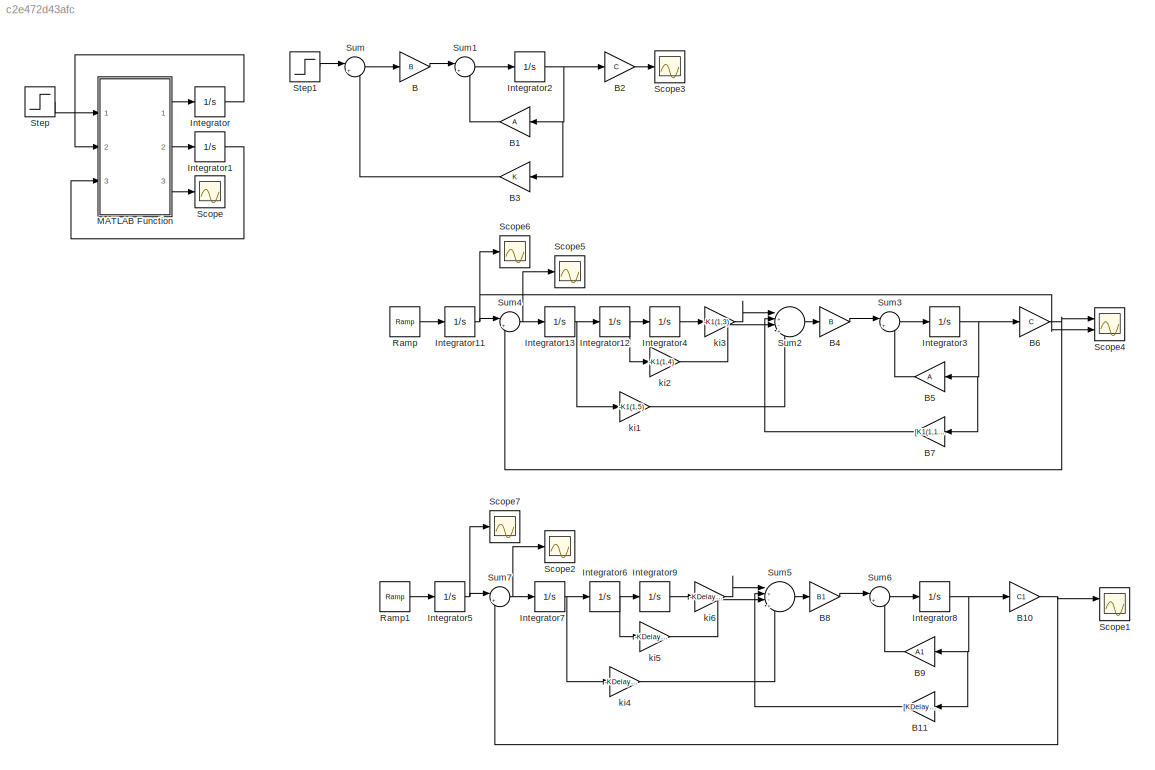
MODEL slx_c2e472d43afc
KIND model
CONFIG AbsTol = auto
CONFIG EnableMultiTasking = off
CONFIG FixedStep = auto
CONFIG MaxStep = auto
CONFIG MinStep = auto
CONFIG RelTol = 1e-3
CONFIG SampleTimeConstraint = Unconstrained
CONFIG SolverName = VariableStepAuto
CONFIG StartTime = 0.0
CONFIG StopTime = 5
BLOCK [Gain] B
  Gain = B
  Multiplication = Matrix(K*u)
BLOCK [Gain] B1
  Gain = A
  Multiplication = Matrix(K*u)
  NameLocation = top
BLOCK [Gain] B10
  Gain = C1
  Multiplication = Matrix(K*u)
BLOCK [Gain] B11
  Gain = [KDelay(1,1),KDelay(1,2),KDelay(1,3),KDelay(1,4)]
  Multiplication = Matrix(K*u)
  NameLocation = top
BLOCK [Gain] B2
  Gain = C
  Multiplication = Matrix(K*u)
BLOCK [Gain] B3
  Gain = K
  Multiplication = Matrix(K*u)
  NameLocation = top
BLOCK [Gain] B4
  Gain = B
  Multiplication = Matrix(K*u)
BLOCK [Gain] B5
  Gain = A
  Multiplication = Matrix(K*u)
  NameLocation = top
BLOCK [Gain] B6
  Gain = C
  Multiplication = Matrix(K*u)
BLOCK [Gain] B7
  Gain = [K1(1,1),K1(1,2)]
  Multiplication = Matrix(K*u)
  NameLocation = top
BLOCK [Gain] B8
  Gain = B1
  Multiplication = Matrix(K*u)
BLOCK [Gain] B9
  Gain = A1
  Multiplication = Matrix(K*u)
  NameLocation = top
BLOCK [Integrator] Integrator
  Ports = [1, 1]
BLOCK [Integrator] Integrator1
  Ports = [1, 1]
BLOCK [Integrator] Integrator11
  Ports = [1, 1]
BLOCK [Integrator] Integrator12
  Ports = [1, 1]
BLOCK [Integrator] Integrator13
  Ports = [1, 1]
BLOCK [Integrator] Integrator2
  Ports = [1, 1]
BLOCK [Integrator] Integrator3
  Ports = [1, 1]
BLOCK [Integrator] Integrator4
  Ports = [1, 1]
BLOCK [Integrator] Integrator5
  Ports = [1, 1]
BLOCK [Integrator] Integrator6
  Ports = [1, 1]
BLOCK [Integrator] Integrator7
  Ports = [1, 1]
BLOCK [Integrator] Integrator8
  Ports = [1, 1]
BLOCK [Integrator] Integrator9
  Ports = [1, 1]
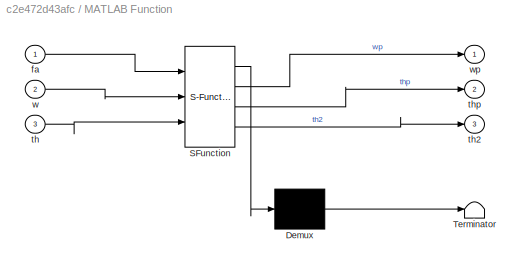
BLOCK [SubSystem] MATLAB Function
  ErrorFcn = Stateflow.Translate.translate
  PermitHierarchicalResolution = ExplicitOnly
  Ports = [3, 3]
  RequestExecContextInheritance = off
  SFBlockType = MATLAB Function
  TreatAsAtomicUnit = on
BLOCK [Demux] MATLAB Function/ Demux 
  Outputs = 1
  Ports = [1, 1]
BLOCK [S-Function] MATLAB Function/ SFunction 
  EnableBusSupport = on
  FunctionName = sf_sfun
  PortCounts = [3 4]
  Ports = [3, 4]
  SFcnIsStateOwnerBlock = off
  SFunctionDeploymentMode = off
  Tag = Stateflow S-Function 2
BLOCK [Terminator] MATLAB Function/ Terminator 
BLOCK [Inport] MATLAB Function/fa
BLOCK [Inport] MATLAB Function/th
  Port = 3
BLOCK [Outport] MATLAB Function/th2
  Port = 3
BLOCK [Outport] MATLAB Function/thp
  Port = 2
BLOCK [Inport] MATLAB Function/w
  Port = 2
BLOCK [Outport] MATLAB Function/wp
BLOCK [Reference] Ramp  REF=simulink/Sources/Ramp
  Ports = [0, 1]
  SourceBlock = simulink/Sources/Ramp
  SourceProductBaseCode = SL
  SourceType = Ramp
BLOCK [Reference] Ramp1  REF=simulink/Sources/Ramp
  Ports = [0, 1]
  SourceBlock = simulink/Sources/Ramp
  SourceProductBaseCode = SL
  SourceType = Ramp
BLOCK [Scope] Scope
  Floating = off
  NumInputPorts = 1
  Ports = [1]
  ScopeSpecificationString = Simulink.scopes.TimeScopeBlockCfg('CurrentConfiguration', extmgr.ConfigurationSet(extmgr.Configuration('Core','General UI',true),extmgr.Configuration('Core','Source UI',true),extmgr.Configuration('Sources','WiredSimulink',true),extmgr.Configuration('Visuals','Time Domain',true,'SerializedDisplays',{struct('MinYLimReal','-0.19435','MaxYLimReal','1.74918','YLabelReal','','MinYLimMag','0.00000','MaxY...<+1339ch>
BLOCK [Scope] Scope1
  Floating = off
  NumInputPorts = 2
  Ports = [2]
  ScopeSpecificationString = Simulink.scopes.TimeScopeBlockCfg('CurrentConfiguration', extmgr.ConfigurationSet(extmgr.Configuration('Core','General UI',true),extmgr.Configuration('Core','Source UI',true),extmgr.Configuration('Sources','WiredSimulink',true,'DataLoggingVariableName','ScopeData1'),extmgr.Configuration('Visuals','Time Domain',true,'SerializedDisplays',{struct('MinYLimReal','-0.21054','MaxYLimReal','1.89482','YLab...<+1405ch>
BLOCK [Scope] Scope2
  Floating = off
  NumInputPorts = 1
  Ports = [1]
  ScopeSpecificationString = Simulink.scopes.TimeScopeBlockCfg('CurrentConfiguration', extmgr.ConfigurationSet(extmgr.Configuration('Core','General UI',true),extmgr.Configuration('Core','Source UI',true),extmgr.Configuration('Sources','WiredSimulink',true,'DataLoggingVariableName','ScopeData2'),extmgr.Configuration('Visuals','Time Domain',true,'SerializedDisplays',{struct('MinYLimReal','-0.00000004','MaxYLimReal','0.00000034'...<+1439ch>
BLOCK [Scope] Scope3
  Floating = off
  NumInputPorts = 1
  Ports = [1]
  ScopeSpecificationString = Simulink.scopes.TimeScopeBlockCfg('CurrentConfiguration', extmgr.ConfigurationSet(extmgr.Configuration('Core','General UI',true),extmgr.Configuration('Core','Source UI',true),extmgr.Configuration('Sources','WiredSimulink',true,'DataLoggingVariableName','ScopeData1'),extmgr.Configuration('Visuals','Time Domain',true,'SerializedDisplays',{struct('MinYLimReal','-0.0073','MaxYLimReal','0.06569','YLabe...<+1391ch>
BLOCK [Scope] Scope4
  Floating = off
  NumInputPorts = 2
  Ports = [2]
  ScopeSpecificationString = Simulink.scopes.TimeScopeBlockCfg('CurrentConfiguration', extmgr.ConfigurationSet(extmgr.Configuration('Core','General UI',true),extmgr.Configuration('Core','Source UI',true),extmgr.Configuration('Sources','WiredSimulink',true,'DataLoggingVariableName','ScopeData2'),extmgr.Configuration('Visuals','Time Domain',true,'SerializedDisplays',{struct('MinYLimReal','-1.00000','MaxYLimReal','1.00000','YLab...<+1407ch>
BLOCK [Scope] Scope5
  Floating = off
  NumInputPorts = 1
  Ports = [1]
  ScopeSpecificationString = Simulink.scopes.TimeScopeBlockCfg('CurrentConfiguration', extmgr.ConfigurationSet(extmgr.Configuration('Core','General UI',true),extmgr.Configuration('Core','Source UI',true),extmgr.Configuration('Sources','WiredSimulink',true,'DataLoggingVariableName','ScopeData3'),extmgr.Configuration('Visuals','Time Domain',true,'SerializedDisplays',{struct('MinYLimReal','-0.000002','MaxYLimReal','0.000018','YL...<+1423ch>
BLOCK [Scope] Scope6
  Floating = off
  NumInputPorts = 1
  Ports = [1]
  ScopeSpecificationString = Simulink.scopes.TimeScopeBlockCfg('CurrentConfiguration', extmgr.ConfigurationSet(extmgr.Configuration('Core','General UI',true),extmgr.Configuration('Core','Source UI',true),extmgr.Configuration('Sources','WiredSimulink',true,'DataLoggingVariableName','ScopeData3'),extmgr.Configuration('Visuals','Time Domain',true,'SerializedDisplays',{struct('MinYLimReal','-0.78125','MaxYLimReal','7.03125','YLab...<+1423ch>
BLOCK [Scope] Scope7
  Floating = off
  NumInputPorts = 1
  Ports = [1]
  ScopeSpecificationString = Simulink.scopes.TimeScopeBlockCfg('CurrentConfiguration', extmgr.ConfigurationSet(extmgr.Configuration('Core','General UI',true),extmgr.Configuration('Core','Source UI',true),extmgr.Configuration('Sources','WiredSimulink',true,'DataLoggingVariableName','ScopeData3'),extmgr.Configuration('Visuals','Time Domain',true,'SerializedDisplays',{struct('MinYLimReal','-0.78125','MaxYLimReal','7.03125','YLab...<+1422ch>
BLOCK [Step] Step
  SampleTime = 0
  Time = 0
BLOCK [Step] Step1
  SampleTime = 0
  Time = 0
BLOCK [Sum] Sum
  Inputs = |+-
  Ports = [2, 1]
BLOCK [Sum] Sum1
  Inputs = |++
  Ports = [2, 1]
BLOCK [Sum] Sum2
  Inputs = |+-++
  Ports = [4, 1]
BLOCK [Sum] Sum3
  Inputs = |++
  Ports = [2, 1]
BLOCK [Sum] Sum4
  Inputs = |+-
  Ports = [2, 1]
BLOCK [Sum] Sum5
  Inputs = |+-++
  Ports = [4, 1]
BLOCK [Sum] Sum6
  Inputs = |++
  Ports = [2, 1]
BLOCK [Sum] Sum7
  Inputs = |+-
  Ports = [2, 1]
BLOCK [Gain] ki1
  Gain = -K1(1,5)
  Multiplication = Matrix(K*u)
BLOCK [Gain] ki2
  Gain = -K1(1,4)
  Multiplication = Matrix(K*u)
BLOCK [Gain] ki3
  Gain = -K1(1,3)
  Multiplication = Matrix(K*u)
BLOCK [Gain] ki4
  Gain = -KDelay(1,7)
  Multiplication = Matrix(K*u)
BLOCK [Gain] ki5
  Gain = -KDelay(1,6)
  Multiplication = Matrix(K*u)
BLOCK [Gain] ki6
  Gain = -KDelay(1,5)
  Multiplication = Matrix(K*u)
NET B10:1 -> Scope1:1, Sum7:2
LINE B11:1 -> Sum5:2
LINE B1:1 -> Sum1:2
LINE B2:1 -> Scope3:1
LINE B3:1 -> Sum:2
LINE B4:1 -> Sum3:1
LINE B5:1 -> Sum3:2
NET B6:1 -> Scope4:1, Sum4:2
LINE B7:1 -> Sum2:2
LINE B8:1 -> Sum6:1
LINE B9:1 -> Sum6:2
LINE B:1 -> Sum1:1
NET Integrator11:1 -> Scope4:2, Scope6:1, Sum4:1
NET Integrator12:1 -> Integrator4:1, ki2:1
NET Integrator13:1 -> Integrator12:1, ki1:1
LINE Integrator1:1 -> MATLAB Function:3
NET Integrator2:1 -> B1:1, B2:1, B3:1
NET Integrator3:1 -> B5:1, B6:1, B7:1
LINE Integrator4:1 -> ki3:1
NET Integrator5:1 -> Scope7:1, Sum7:1
NET Integrator6:1 -> Integrator9:1, ki5:1
NET Integrator7:1 -> Integrator6:1, ki4:1
NET Integrator8:1 -> B10:1, B11:1, B9:1
LINE Integrator9:1 -> ki6:1
LINE Integrator:1 -> MATLAB Function:2
LINE MATLAB Function:1 -> Integrator:1
LINE MATLAB Function:2 -> Integrator1:1
LINE MATLAB Function:3 -> Scope:1
LINE Ramp1:1 -> Integrator5:1
LINE Ramp:1 -> Integrator11:1
LINE Step1:1 -> Sum:1
LINE Step:1 -> MATLAB Function:1
LINE Sum1:1 -> Integrator2:1
LINE Sum2:1 -> B4:1
LINE Sum3:1 -> Integrator3:1
NET Sum4:1 -> Integrator13:1, Scope5:1
LINE Sum5:1 -> B8:1
LINE Sum6:1 -> Integrator8:1
NET Sum7:1 -> Integrator7:1, Scope2:1
LINE Sum:1 -> B:1
LINE ki1:1 -> Sum2:4
LINE ki2:1 -> Sum2:3
LINE ki3:1 -> Sum2:1
LINE ki4:1 -> Sum5:4
LINE ki5:1 -> Sum5:3
LINE ki6:1 -> Sum5:1
note: NET lines group one-source signal fan-out (src -> all destinations, sorted); 1:1 wires keep LINE
CHART MATLAB Function states=1 transitions=1
  STATE_LABEL 'eML_blk_kernel()'
  STATE_LABEL 'SCRIPT:\nfunction [wp,thp,th2] = fcn(fa,w,th)\nJ=0.01;\nr=0.1;\nr2=r/2;\nk=1;\nk2=0.5;\nb=0.1;\ng=9.81;\nm=1;\n\nthp=w;\nwp=(1/(J+m*r*r))*(r*(fa+m*g)-b*w-k*r*r*th-((r*r)/(r2*r2))*k2*th);\nth2=(r/r2)*th;'
CHART  states=0 transitions=0
